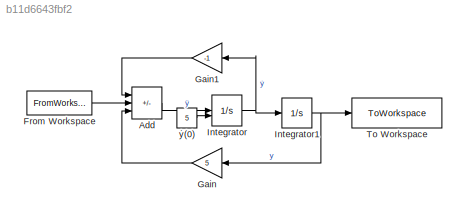
MODEL slx_b11d6643fbf2
KIND model
CONFIG AbsTol = auto
CONFIG EnableMultiTasking = off
CONFIG FixedStep = 0.001
CONFIG MaxStep = auto
CONFIG MinStep = auto
CONFIG RelTol = 1e-3
CONFIG SampleTimeConstraint = Unconstrained
CONFIG SolverName = FixedStepAuto
CONFIG StartTime = 0.0
CONFIG StopTime = 10.0
BLOCK [Sum] Add
  IconShape = rectangular
  Inputs = -+-
BLOCK [FromWorkspace] From Workspace
  VariableName = u
BLOCK [Gain] Gain
  Gain = 5
BLOCK [Gain] Gain1
  Gain = -1
BLOCK [Integrator] Integrator
  InitialCondition = 5
  InitialConditionSource = external
BLOCK [Integrator] Integrator1
BLOCK [ToWorkspace] To Workspace
  FixptAsFi = on
  MaxDataPoints = inf
  SampleTime = -1
  SaveFormat = Timeseries
  VariableName = y
BLOCK [Constant] ẏ(0)
  Value = 5
LINE Add:1 -> Integrator:1
LINE From Workspace:1 -> Add:2
LINE Gain1:1 -> Add:1
LINE Gain:1 -> Add:3
NET Integrator1:1 -> Gain:1, To Workspace:1
NET Integrator:1 -> Gain1:1, Integrator1:1
LINE ẏ(0):1 -> Integrator:2
note: NET lines group one-source signal fan-out (src -> all destinations, sorted); 1:1 wires keep LINE
